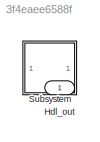
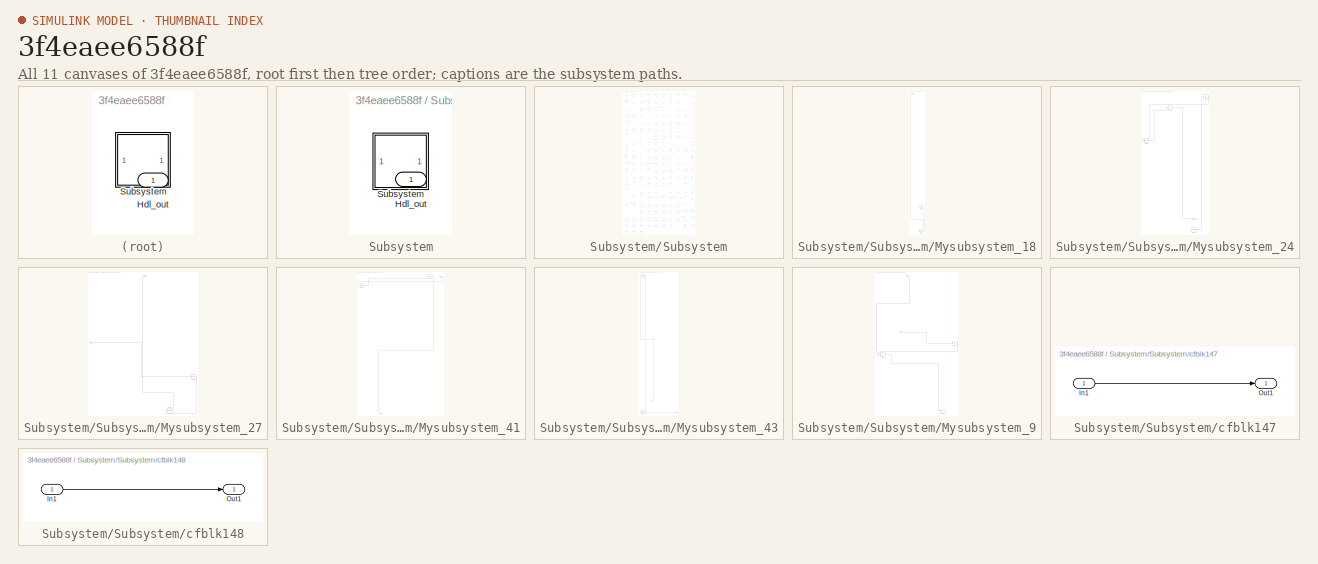
[diagram: thumbnail index - all 11 canvases of the model, root first then tree order]
MODEL slx_3f4eaee6588f
KIND model
CONFIG AbsTol = auto
CONFIG EnableMultiTasking = off
CONFIG FixedStep = auto
CONFIG MaxStep = auto
CONFIG MinStep = auto
CONFIG RelTol = 1e-3
CONFIG SampleTimeConstraint = Unconstrained
CONFIG SolverName = VariableStepAuto
CONFIG StartTime = 0.0
CONFIG StopTime = 10.0
BLOCK [Outport] Hdl_out
  OutDataTypeStr = uint8
BLOCK [SubSystem] Subsystem
BLOCK [Outport] Subsystem/Hdl_out
  OutDataTypeStr = uint8
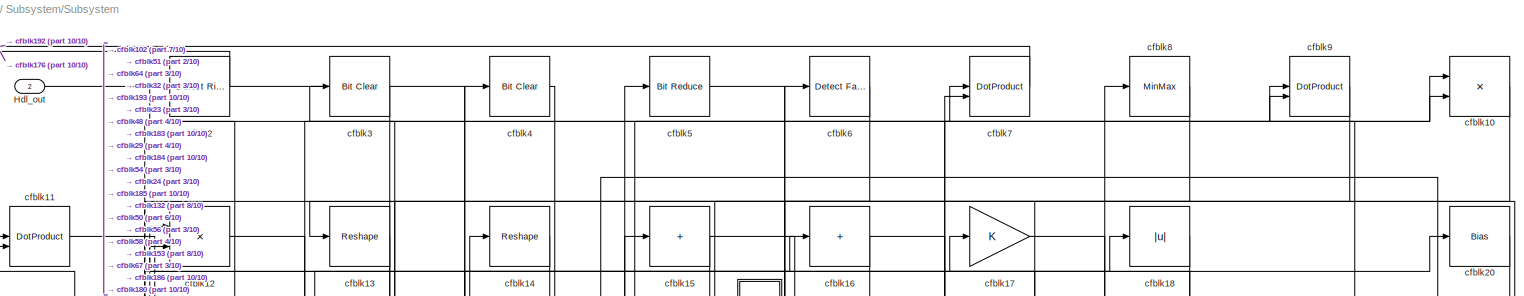
[diagram: Subsystem/Subsystem - part 1/10, full width, top band]
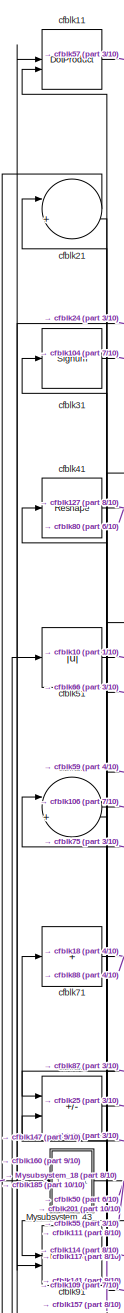
[diagram: Subsystem/Subsystem - part 2/10, top left region]
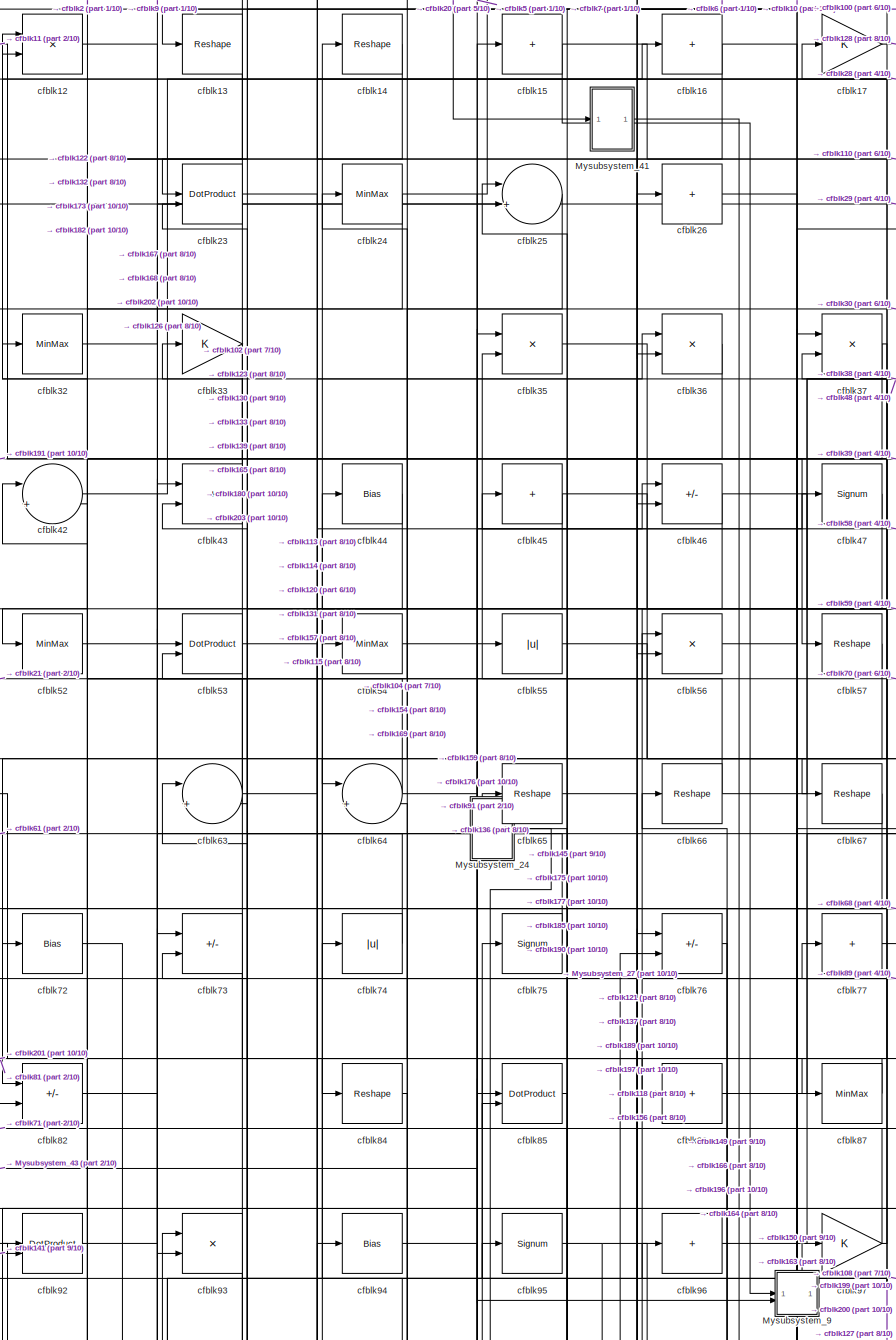
[diagram: Subsystem/Subsystem - part 3/10, top center region]
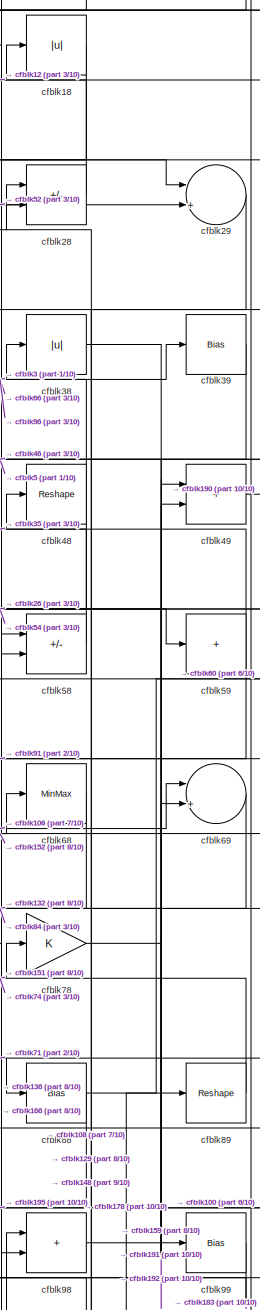
[diagram: Subsystem/Subsystem - part 4/10, top right region]
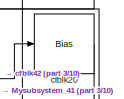
[diagram: Subsystem/Subsystem - part 5/10, top right region]
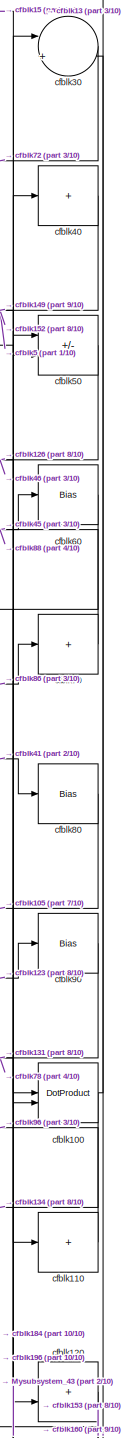
[diagram: Subsystem/Subsystem - part 6/10, middle right region]
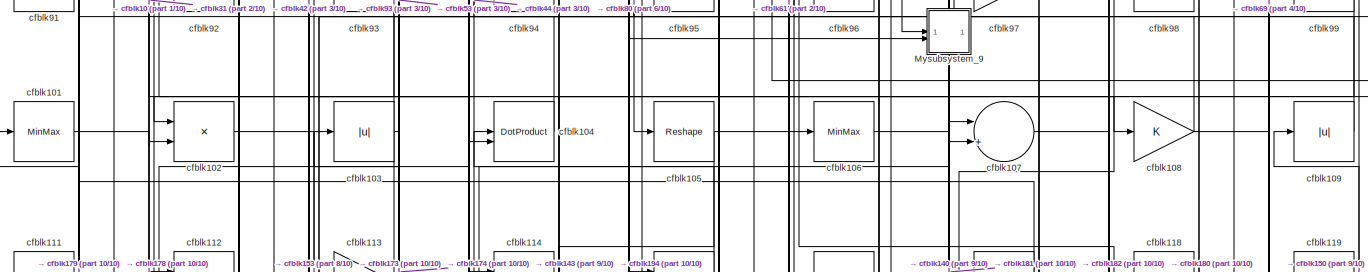
[diagram: Subsystem/Subsystem - part 7/10, full width, middle band]
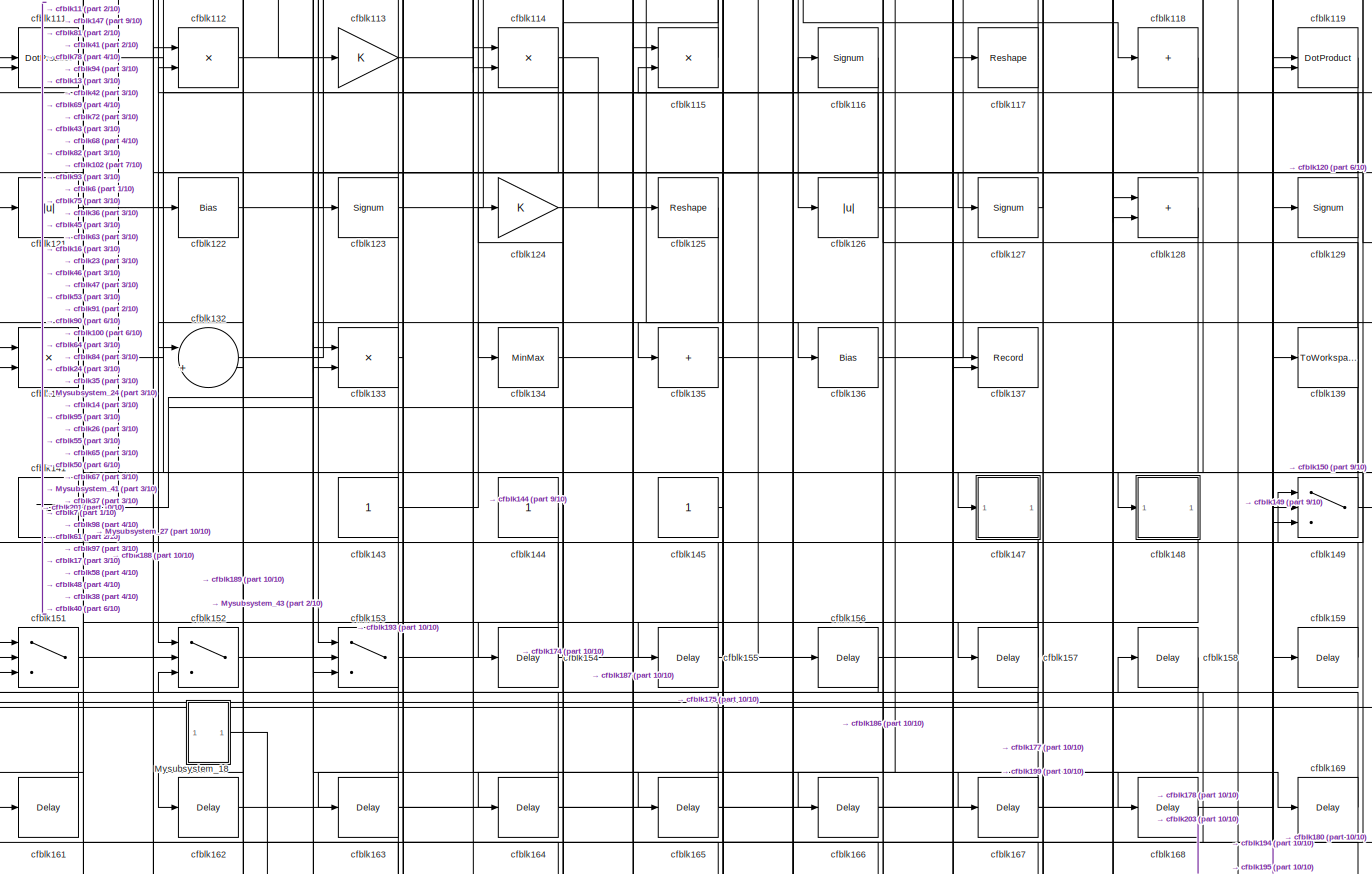
[diagram: Subsystem/Subsystem - part 8/10, full width, bottom band]
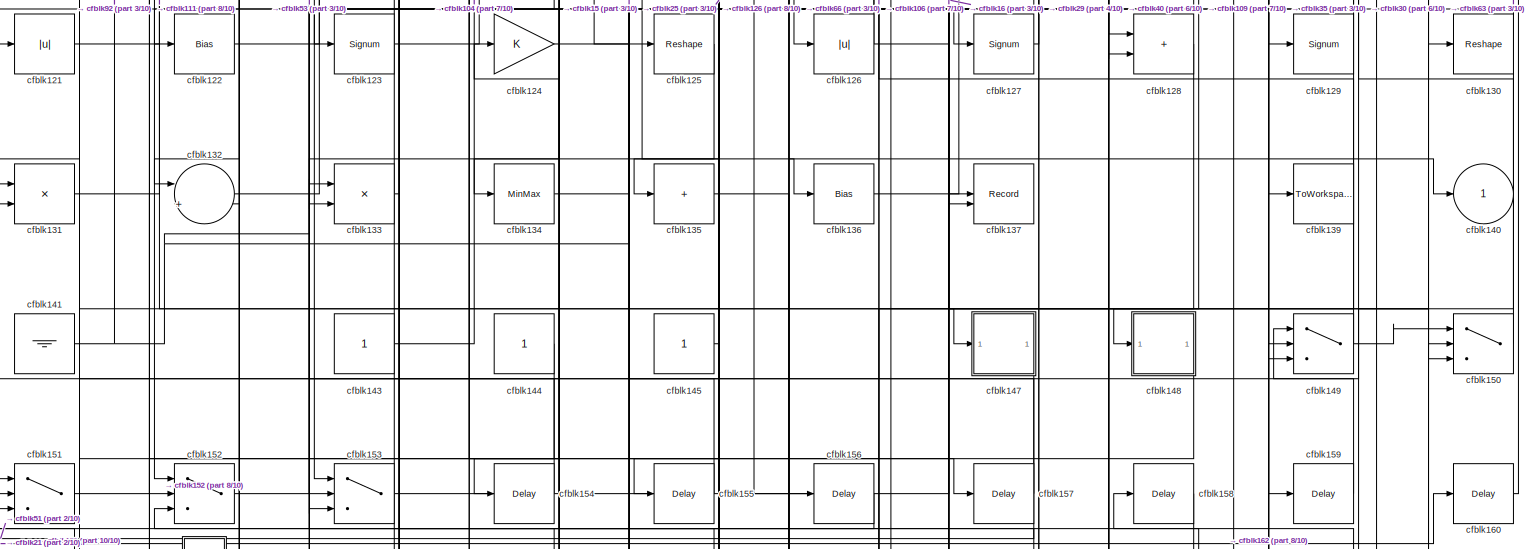
[diagram: Subsystem/Subsystem - part 9/10, full width, bottom band]
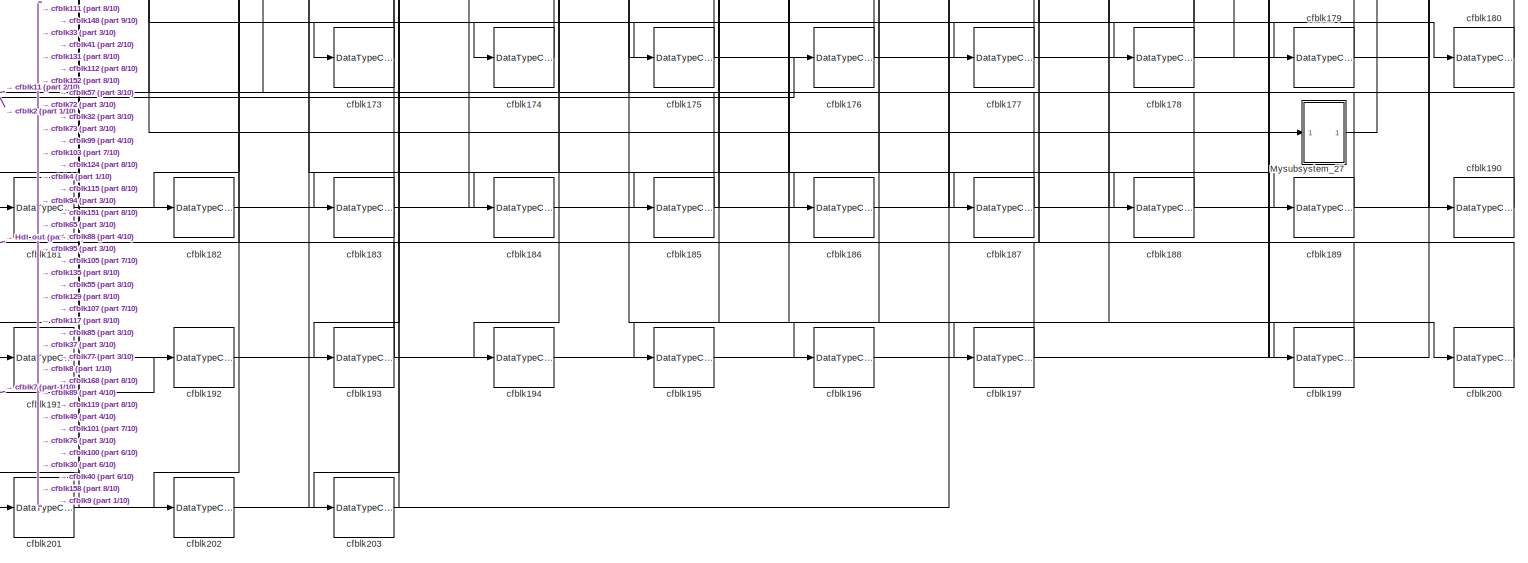
[diagram: Subsystem/Subsystem - part 10/10, full width, bottom band]
BLOCK [SubSystem] Subsystem/Subsystem
BLOCK [Outport] Subsystem/Subsystem/Hdl_out
  OutDataTypeStr = uint8
  Port = 2
BLOCK [SubSystem] Subsystem/Subsystem/Mysubsystem_18
  RTWFcnName = Mysubsystem_18
  RTWFcnNameOpts = User specified
  RTWFileNameOpts = Use function name
  RTWSystemCode = Reusable function
  TreatAsAtomicUnit = on
BLOCK [Outport] Subsystem/Subsystem/Mysubsystem_18/Out1
BLOCK [Reference] Subsystem/Subsystem/Mysubsystem_18/cfblk142  REF=hdlsllib/Sources/Counter
Limited
  SourceBlock = hdlsllib/Sources/Counter\nLimited
  SourceType = Counter Limited
BLOCK [DataTypeConversion] Subsystem/Subsystem/Mysubsystem_18/cfblk172
  OutDataTypeStr = uint8
  RndMeth = Floor
  SaturateOnIntegerOverflow = off
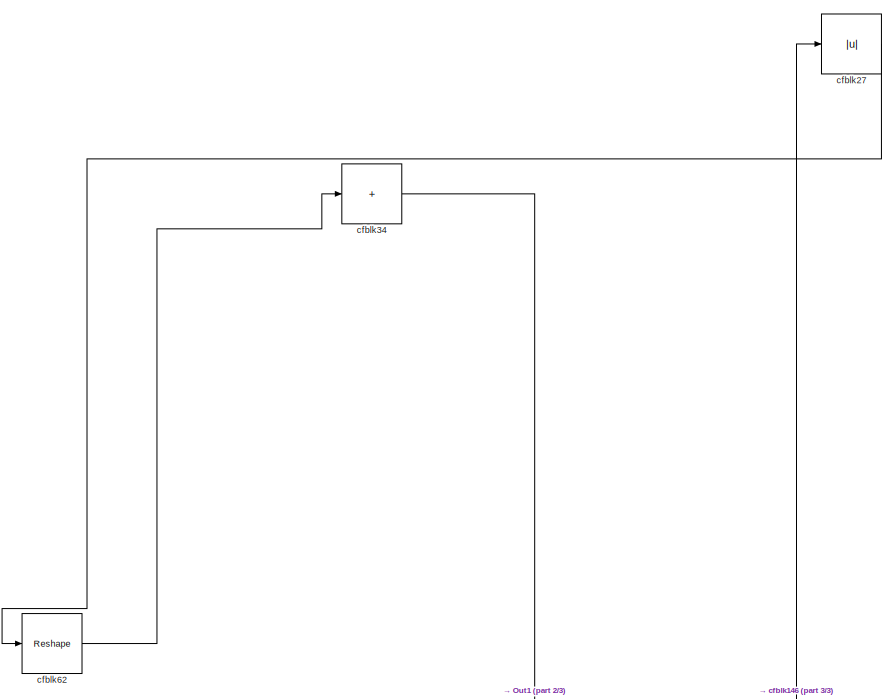
[diagram: Subsystem/Subsystem/Mysubsystem_24 - part 1/3, full width, top band]
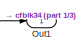
[diagram: Subsystem/Subsystem/Mysubsystem_24 - part 2/3, bottom right region]
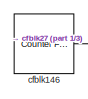
[diagram: Subsystem/Subsystem/Mysubsystem_24 - part 3/3, bottom right region]
BLOCK [SubSystem] Subsystem/Subsystem/Mysubsystem_24
  RTWFcnName = Mysubsystem_24
  RTWFcnNameOpts = User specified
  RTWFileNameOpts = Use function name
  RTWSystemCode = Reusable function
  TreatAsAtomicUnit = on
BLOCK [Outport] Subsystem/Subsystem/Mysubsystem_24/Out1
BLOCK [Reference] Subsystem/Subsystem/Mysubsystem_24/cfblk146  REF=hdlsllib/Sources/Counter
Free-Running
  SourceBlock = hdlsllib/Sources/Counter\nFree-Running
  SourceType = Counter Free-Running
BLOCK [Abs] Subsystem/Subsystem/Mysubsystem_24/cfblk27
  SaturateOnIntegerOverflow = off
BLOCK [Sum] Subsystem/Subsystem/Mysubsystem_24/cfblk34
  IconShape = rectangular
  Inputs = +
BLOCK [Reshape] Subsystem/Subsystem/Mysubsystem_24/cfblk62
BLOCK [SubSystem] Subsystem/Subsystem/Mysubsystem_27
  RTWFcnName = Mysubsystem_27
  RTWFcnNameOpts = User specified
  RTWFileNameOpts = Use function name
  RTWSystemCode = Reusable function
  TreatAsAtomicUnit = on
BLOCK [Inport] Subsystem/Subsystem/Mysubsystem_27/In1
BLOCK [Outport] Subsystem/Subsystem/Mysubsystem_27/Out1
BLOCK [Delay] Subsystem/Subsystem/Mysubsystem_27/cfblk170
  InputPortMap = u0
  SampleTime = 1
BLOCK [DataTypeConversion] Subsystem/Subsystem/Mysubsystem_27/cfblk198
  OutDataTypeStr = uint8
  RndMeth = Floor
  SaturateOnIntegerOverflow = off
BLOCK [SubSystem] Subsystem/Subsystem/Mysubsystem_41
  RTWFcnName = Mysubsystem_41
  RTWFcnNameOpts = User specified
  RTWFileNameOpts = Use function name
  RTWSystemCode = Reusable function
  TreatAsAtomicUnit = on
BLOCK [Inport] Subsystem/Subsystem/Mysubsystem_41/In1
BLOCK [Outport] Subsystem/Subsystem/Mysubsystem_41/Out1
BLOCK [Signum] Subsystem/Subsystem/Mysubsystem_41/cfblk19
BLOCK [Signum] Subsystem/Subsystem/Mysubsystem_41/cfblk22
BLOCK [SubSystem] Subsystem/Subsystem/Mysubsystem_43
  RTWFcnName = Mysubsystem_43
  RTWFcnNameOpts = User specified
  RTWFileNameOpts = Use function name
  RTWSystemCode = Reusable function
  TreatAsAtomicUnit = on
BLOCK [Outport] Subsystem/Subsystem/Mysubsystem_43/Out1
BLOCK [Inport] Subsystem/Subsystem/Mysubsystem_43/U
BLOCK [Reference] Subsystem/Subsystem/Mysubsystem_43/cfblk1  REF=hdlsllib/Logic and Bit
Operations/Detect Fall
Negative
  SourceBlock = hdlsllib/Logic and Bit\nOperations/Detect Fall\nNegative
  SourceType = Detect Fall Negative
BLOCK [DataTypeConversion] Subsystem/Subsystem/Mysubsystem_43/cfblk171
  RndMeth = Floor
  SaturateOnIntegerOverflow = off
BLOCK [SubSystem] Subsystem/Subsystem/Mysubsystem_9
  RTWFcnName = Mysubsystem_9
  RTWFcnNameOpts = User specified
  RTWFileNameOpts = Use function name
  RTWSystemCode = Reusable function
  TreatAsAtomicUnit = on
BLOCK [Inport] Subsystem/Subsystem/Mysubsystem_9/In1
BLOCK [Inport] Subsystem/Subsystem/Mysubsystem_9/In2
  Port = 2
BLOCK [Terminator] Subsystem/Subsystem/Mysubsystem_9/cfblk138
BLOCK [Abs] Subsystem/Subsystem/Mysubsystem_9/cfblk79
  SaturateOnIntegerOverflow = off
BLOCK [Sum] Subsystem/Subsystem/Mysubsystem_9/cfblk83
  IconShape = rectangular
  Inputs = +-
BLOCK [Product] Subsystem/Subsystem/cfblk10
  Inputs = */
  OutDataTypeStr = uint8
  RndMeth = Zero
  SaturateOnIntegerOverflow = on
BLOCK [DotProduct] Subsystem/Subsystem/cfblk100
  OutDataTypeStr = uint8
BLOCK [MinMax] Subsystem/Subsystem/cfblk101
  OutDataTypeStr = uint8
BLOCK [Product] Subsystem/Subsystem/cfblk102
  Inputs = */
  OutDataTypeStr = uint8
  RndMeth = Zero
  SaturateOnIntegerOverflow = on
BLOCK [Abs] Subsystem/Subsystem/cfblk103
  OutDataTypeStr = uint8
  SaturateOnIntegerOverflow = off
BLOCK [DotProduct] Subsystem/Subsystem/cfblk104
  OutDataTypeStr = uint8
BLOCK [Reshape] Subsystem/Subsystem/cfblk105
BLOCK [MinMax] Subsystem/Subsystem/cfblk106
  OutDataTypeStr = uint8
BLOCK [Sum] Subsystem/Subsystem/cfblk107
  Inputs = |++
  OutDataTypeStr = uint8
BLOCK [Gain] Subsystem/Subsystem/cfblk108
  OutDataTypeStr = uint8
BLOCK [Abs] Subsystem/Subsystem/cfblk109
  OutDataTypeStr = uint8
  SaturateOnIntegerOverflow = off
BLOCK [DotProduct] Subsystem/Subsystem/cfblk11
  OutDataTypeStr = uint8
BLOCK [Sum] Subsystem/Subsystem/cfblk110
  IconShape = rectangular
  Inputs = +
  OutDataTypeStr = uint8
BLOCK [DotProduct] Subsystem/Subsystem/cfblk111
  OutDataTypeStr = uint8
BLOCK [Product] Subsystem/Subsystem/cfblk112
  Inputs = */
  OutDataTypeStr = uint8
  RndMeth = Zero
  SaturateOnIntegerOverflow = on
BLOCK [Gain] Subsystem/Subsystem/cfblk113
  OutDataTypeStr = uint8
BLOCK [Product] Subsystem/Subsystem/cfblk114
  Inputs = */
  OutDataTypeStr = uint8
  RndMeth = Zero
  SaturateOnIntegerOverflow = on
BLOCK [Product] Subsystem/Subsystem/cfblk115
  Inputs = */
  OutDataTypeStr = uint8
  RndMeth = Zero
  SaturateOnIntegerOverflow = on
BLOCK [Signum] Subsystem/Subsystem/cfblk116
BLOCK [Reshape] Subsystem/Subsystem/cfblk117
BLOCK [Sum] Subsystem/Subsystem/cfblk118
  IconShape = rectangular
  Inputs = +
  OutDataTypeStr = uint8
BLOCK [DotProduct] Subsystem/Subsystem/cfblk119
  OutDataTypeStr = uint8
BLOCK [Product] Subsystem/Subsystem/cfblk12
  Inputs = */
  OutDataTypeStr = uint8
  RndMeth = Zero
  SaturateOnIntegerOverflow = on
BLOCK [Sum] Subsystem/Subsystem/cfblk120
  IconShape = rectangular
  OutDataTypeStr = uint8
BLOCK [Abs] Subsystem/Subsystem/cfblk121
  OutDataTypeStr = uint8
  SaturateOnIntegerOverflow = off
BLOCK [Bias] Subsystem/Subsystem/cfblk122
  Bias = 0.0
  SaturateOnIntegerOverflow = off
BLOCK [Signum] Subsystem/Subsystem/cfblk123
BLOCK [Gain] Subsystem/Subsystem/cfblk124
  OutDataTypeStr = uint8
BLOCK [Reshape] Subsystem/Subsystem/cfblk125
BLOCK [Abs] Subsystem/Subsystem/cfblk126
  OutDataTypeStr = uint8
  SaturateOnIntegerOverflow = off
BLOCK [Signum] Subsystem/Subsystem/cfblk127
BLOCK [Sum] Subsystem/Subsystem/cfblk128
  IconShape = rectangular
  OutDataTypeStr = uint8
BLOCK [Signum] Subsystem/Subsystem/cfblk129
BLOCK [Reshape] Subsystem/Subsystem/cfblk13
BLOCK [Reshape] Subsystem/Subsystem/cfblk130
BLOCK [Product] Subsystem/Subsystem/cfblk131
  Inputs = */
  OutDataTypeStr = uint8
  RndMeth = Zero
  SaturateOnIntegerOverflow = on
BLOCK [Sum] Subsystem/Subsystem/cfblk132
  Inputs = |++
  OutDataTypeStr = uint8
BLOCK [Product] Subsystem/Subsystem/cfblk133
  Inputs = */
  OutDataTypeStr = uint8
  RndMeth = Zero
  SaturateOnIntegerOverflow = on
BLOCK [MinMax] Subsystem/Subsystem/cfblk134
  OutDataTypeStr = uint8
BLOCK [Sum] Subsystem/Subsystem/cfblk135
  IconShape = rectangular
  Inputs = +
  OutDataTypeStr = uint8
BLOCK [Bias] Subsystem/Subsystem/cfblk136
  Bias = 0.0
  SaturateOnIntegerOverflow = off
BLOCK [Record] Subsystem/Subsystem/cfblk137
  CompatibilityTag = XY
  FileSettingsInternal = {"entries":[{"content":{"excelSettings":{"content":{},"type":"Streamout.ExcelSettings"}},"type":"Streamout.FileSettingStorage","uuid":""}],"packageUris":["http:\/\/schema.mathworks.com\/mf0\/streamout_blocks\/R2020a"],"version":"1.0"}
  Layout = [1 1]
  SignalsInternal = {"entries":[{"content":{"signals":[{"content":{"blockPath":[],"dimensions":[1],"domain":"","lineColor":"#a2142f","plots":[1],"port":1,"signalID":58745,"signalName":"cfblk55"},"type":"RecordBlkView.Signal","uuid":""},{"content":{"blockPath":[],"dimensions":[1],"domain":"","lineColor":"#139fff","plots":[1],"port":2,"signalID":58748,"signalName":"cfblk65"},"type":"RecordBlkView.Signal","uuid":""}]},"...<+142ch>
  VisualizationBindings = {"xyplotplugin":{"info":[{"series":[{"bindingParametersList":[{"parameter":"X-Axis","signalID":58745,"signalName":"cfblk55"},{"parameter":"Y-Axis","signalID":58748,"signalName":"cfblk65"}],"seriesID":15108}],"subplotID":1}]}}
  st = -1
BLOCK [ToWorkspace] Subsystem/Subsystem/cfblk139
  MaxDataPoints = inf
  SampleTime = -1
  SaveFormat = Timeseries
  VariableName = simout
BLOCK [Reshape] Subsystem/Subsystem/cfblk14
BLOCK [Outport] Subsystem/Subsystem/cfblk140
  OutDataTypeStr = uint8
  VectorParamsAs1DForOutWhenUnconnected = off
BLOCK [Ground] Subsystem/Subsystem/cfblk141
BLOCK [Constant] Subsystem/Subsystem/cfblk143
  OutDataTypeStr = uint8
  SampleTime = -1
BLOCK [Constant] Subsystem/Subsystem/cfblk144
  OutDataTypeStr = uint8
  SampleTime = -1
BLOCK [Constant] Subsystem/Subsystem/cfblk145
  OutDataTypeStr = uint8
  SampleTime = -1
BLOCK [SubSystem] Subsystem/Subsystem/cfblk147
  LibrarySourceBlock = hdlsllib/Ports &\nSubsystems/Subsystem
BLOCK [Inport] Subsystem/Subsystem/cfblk147/In1
BLOCK [Outport] Subsystem/Subsystem/cfblk147/Out1
BLOCK [SubSystem] Subsystem/Subsystem/cfblk148
  LibrarySourceBlock = hdlsllib/Ports &\nSubsystems/Subsystem
BLOCK [Inport] Subsystem/Subsystem/cfblk148/In1
BLOCK [Outport] Subsystem/Subsystem/cfblk148/Out1
BLOCK [Switch] Subsystem/Subsystem/cfblk149
  InputSameDT = off
  OutDataTypeStr = uint8
  SaturateOnIntegerOverflow = off
BLOCK [Sum] Subsystem/Subsystem/cfblk15
  IconShape = rectangular
  Inputs = +
  OutDataTypeStr = uint8
BLOCK [Switch] Subsystem/Subsystem/cfblk150
  InputSameDT = off
  OutDataTypeStr = uint8
  SaturateOnIntegerOverflow = off
BLOCK [Switch] Subsystem/Subsystem/cfblk151
  InputSameDT = off
  OutDataTypeStr = uint8
  SaturateOnIntegerOverflow = off
BLOCK [Switch] Subsystem/Subsystem/cfblk152
  InputSameDT = off
  OutDataTypeStr = uint8
  SaturateOnIntegerOverflow = off
BLOCK [Switch] Subsystem/Subsystem/cfblk153
  InputSameDT = off
  OutDataTypeStr = uint8
  SaturateOnIntegerOverflow = off
BLOCK [Delay] Subsystem/Subsystem/cfblk154
  InputPortMap = u0
  SampleTime = 1
BLOCK [Delay] Subsystem/Subsystem/cfblk155
  InputPortMap = u0
  SampleTime = 1
BLOCK [Delay] Subsystem/Subsystem/cfblk156
  InputPortMap = u0
  SampleTime = 1
BLOCK [Delay] Subsystem/Subsystem/cfblk157
  InputPortMap = u0
  SampleTime = 1
BLOCK [Delay] Subsystem/Subsystem/cfblk158
  InputPortMap = u0
  SampleTime = 1
BLOCK [Delay] Subsystem/Subsystem/cfblk159
  InputPortMap = u0
  SampleTime = 1
BLOCK [Sum] Subsystem/Subsystem/cfblk16
  IconShape = rectangular
  Inputs = +
  OutDataTypeStr = uint8
BLOCK [Delay] Subsystem/Subsystem/cfblk160
  InputPortMap = u0
  SampleTime = 1
BLOCK [Delay] Subsystem/Subsystem/cfblk161
  InputPortMap = u0
  SampleTime = 1
BLOCK [Delay] Subsystem/Subsystem/cfblk162
  InputPortMap = u0
  SampleTime = 1
BLOCK [Delay] Subsystem/Subsystem/cfblk163
  InputPortMap = u0
  SampleTime = 1
BLOCK [Delay] Subsystem/Subsystem/cfblk164
  InputPortMap = u0
  SampleTime = 1
BLOCK [Delay] Subsystem/Subsystem/cfblk165
  InputPortMap = u0
  SampleTime = 1
BLOCK [Delay] Subsystem/Subsystem/cfblk166
  InputPortMap = u0
  SampleTime = 1
BLOCK [Delay] Subsystem/Subsystem/cfblk167
  InputPortMap = u0
  SampleTime = 1
BLOCK [Delay] Subsystem/Subsystem/cfblk168
  InputPortMap = u0
  SampleTime = 1
BLOCK [Delay] Subsystem/Subsystem/cfblk169
  InputPortMap = u0
  SampleTime = 1
BLOCK [Gain] Subsystem/Subsystem/cfblk17
  OutDataTypeStr = uint8
BLOCK [DataTypeConversion] Subsystem/Subsystem/cfblk173
  OutDataTypeStr = uint8
  RndMeth = Floor
  SaturateOnIntegerOverflow = off
BLOCK [DataTypeConversion] Subsystem/Subsystem/cfblk174
  OutDataTypeStr = uint8
  RndMeth = Floor
  SaturateOnIntegerOverflow = off
BLOCK [DataTypeConversion] Subsystem/Subsystem/cfblk175
  OutDataTypeStr = uint8
  RndMeth = Floor
  SaturateOnIntegerOverflow = off
BLOCK [DataTypeConversion] Subsystem/Subsystem/cfblk176
  OutDataTypeStr = uint8
  RndMeth = Floor
  SaturateOnIntegerOverflow = off
BLOCK [DataTypeConversion] Subsystem/Subsystem/cfblk177
  OutDataTypeStr = uint8
  RndMeth = Floor
  SaturateOnIntegerOverflow = off
BLOCK [DataTypeConversion] Subsystem/Subsystem/cfblk178
  OutDataTypeStr = uint8
  RndMeth = Floor
  SaturateOnIntegerOverflow = off
BLOCK [DataTypeConversion] Subsystem/Subsystem/cfblk179
  OutDataTypeStr = uint8
  RndMeth = Floor
  SaturateOnIntegerOverflow = off
BLOCK [Abs] Subsystem/Subsystem/cfblk18
  OutDataTypeStr = uint8
  SaturateOnIntegerOverflow = off
BLOCK [DataTypeConversion] Subsystem/Subsystem/cfblk180
  OutDataTypeStr = uint8
  RndMeth = Floor
  SaturateOnIntegerOverflow = off
BLOCK [DataTypeConversion] Subsystem/Subsystem/cfblk181
  OutDataTypeStr = uint8
  RndMeth = Floor
  SaturateOnIntegerOverflow = off
BLOCK [DataTypeConversion] Subsystem/Subsystem/cfblk182
  OutDataTypeStr = uint8
  RndMeth = Floor
  SaturateOnIntegerOverflow = off
BLOCK [DataTypeConversion] Subsystem/Subsystem/cfblk183
  OutDataTypeStr = uint8
  RndMeth = Floor
  SaturateOnIntegerOverflow = off
BLOCK [DataTypeConversion] Subsystem/Subsystem/cfblk184
  OutDataTypeStr = uint8
  RndMeth = Floor
  SaturateOnIntegerOverflow = off
BLOCK [DataTypeConversion] Subsystem/Subsystem/cfblk185
  OutDataTypeStr = uint8
  RndMeth = Floor
  SaturateOnIntegerOverflow = off
BLOCK [DataTypeConversion] Subsystem/Subsystem/cfblk186
  OutDataTypeStr = uint8
  RndMeth = Floor
  SaturateOnIntegerOverflow = off
BLOCK [DataTypeConversion] Subsystem/Subsystem/cfblk187
  OutDataTypeStr = uint8
  RndMeth = Floor
  SaturateOnIntegerOverflow = off
BLOCK [DataTypeConversion] Subsystem/Subsystem/cfblk188
  OutDataTypeStr = uint8
  RndMeth = Floor
  SaturateOnIntegerOverflow = off
BLOCK [DataTypeConversion] Subsystem/Subsystem/cfblk189
  OutDataTypeStr = uint8
  RndMeth = Floor
  SaturateOnIntegerOverflow = off
BLOCK [DataTypeConversion] Subsystem/Subsystem/cfblk190
  OutDataTypeStr = uint8
  RndMeth = Floor
  SaturateOnIntegerOverflow = off
BLOCK [DataTypeConversion] Subsystem/Subsystem/cfblk191
  OutDataTypeStr = uint8
  RndMeth = Floor
  SaturateOnIntegerOverflow = off
BLOCK [DataTypeConversion] Subsystem/Subsystem/cfblk192
  OutDataTypeStr = uint8
  RndMeth = Floor
  SaturateOnIntegerOverflow = off
BLOCK [DataTypeConversion] Subsystem/Subsystem/cfblk193
  OutDataTypeStr = uint8
  RndMeth = Floor
  SaturateOnIntegerOverflow = off
BLOCK [DataTypeConversion] Subsystem/Subsystem/cfblk194
  OutDataTypeStr = uint8
  RndMeth = Floor
  SaturateOnIntegerOverflow = off
BLOCK [DataTypeConversion] Subsystem/Subsystem/cfblk195
  OutDataTypeStr = uint8
  RndMeth = Floor
  SaturateOnIntegerOverflow = off
BLOCK [DataTypeConversion] Subsystem/Subsystem/cfblk196
  OutDataTypeStr = uint8
  RndMeth = Floor
  SaturateOnIntegerOverflow = off
BLOCK [DataTypeConversion] Subsystem/Subsystem/cfblk197
  OutDataTypeStr = uint8
  RndMeth = Floor
  SaturateOnIntegerOverflow = off
BLOCK [DataTypeConversion] Subsystem/Subsystem/cfblk199
  OutDataTypeStr = uint8
  RndMeth = Floor
  SaturateOnIntegerOverflow = off
BLOCK [Reference] Subsystem/Subsystem/cfblk2  REF=hdlsllib/Logic and Bit
Operations/Detect Rise
Positive
  SourceBlock = hdlsllib/Logic and Bit\nOperations/Detect Rise\nPositive
  SourceType = Detect Rise Positive
BLOCK [Bias] Subsystem/Subsystem/cfblk20
  Bias = 0.0
  SaturateOnIntegerOverflow = off
BLOCK [DataTypeConversion] Subsystem/Subsystem/cfblk200
  OutDataTypeStr = uint8
  RndMeth = Floor
  SaturateOnIntegerOverflow = off
BLOCK [DataTypeConversion] Subsystem/Subsystem/cfblk201
  OutDataTypeStr = uint8
  RndMeth = Floor
  SaturateOnIntegerOverflow = off
BLOCK [DataTypeConversion] Subsystem/Subsystem/cfblk202
  OutDataTypeStr = uint8
  RndMeth = Floor
  SaturateOnIntegerOverflow = off
BLOCK [DataTypeConversion] Subsystem/Subsystem/cfblk203
  OutDataTypeStr = uint8
  RndMeth = Floor
  SaturateOnIntegerOverflow = off
BLOCK [Sum] Subsystem/Subsystem/cfblk21
  Inputs = |++
  OutDataTypeStr = uint8
BLOCK [DotProduct] Subsystem/Subsystem/cfblk23
  OutDataTypeStr = uint8
BLOCK [MinMax] Subsystem/Subsystem/cfblk24
  OutDataTypeStr = uint8
BLOCK [Sum] Subsystem/Subsystem/cfblk25
  Inputs = |++
  OutDataTypeStr = uint8
BLOCK [Sum] Subsystem/Subsystem/cfblk26
  IconShape = rectangular
  Inputs = +
  OutDataTypeStr = uint8
BLOCK [Sum] Subsystem/Subsystem/cfblk28
  IconShape = rectangular
  Inputs = +-
  OutDataTypeStr = uint8
BLOCK [Sum] Subsystem/Subsystem/cfblk29
  Inputs = |++
  OutDataTypeStr = uint8
BLOCK [Reference] Subsystem/Subsystem/cfblk3  REF=simulink/Logic and Bit
Operations/Bit Clear
  LibrarySourceBlock = hdlsllib/Logic and Bit\nOperations/Bit Clear
  SourceBlock = simulink/Logic and Bit\nOperations/Bit Clear
  SourceType = Bit Clear
BLOCK [Sum] Subsystem/Subsystem/cfblk30
  Inputs = |++
  OutDataTypeStr = uint8
BLOCK [Signum] Subsystem/Subsystem/cfblk31
BLOCK [MinMax] Subsystem/Subsystem/cfblk32
  OutDataTypeStr = uint8
BLOCK [Gain] Subsystem/Subsystem/cfblk33
  OutDataTypeStr = uint8
BLOCK [Product] Subsystem/Subsystem/cfblk35
  Inputs = */
  OutDataTypeStr = uint8
  RndMeth = Zero
  SaturateOnIntegerOverflow = on
BLOCK [Product] Subsystem/Subsystem/cfblk36
  Inputs = */
  OutDataTypeStr = uint8
  RndMeth = Zero
  SaturateOnIntegerOverflow = on
BLOCK [Product] Subsystem/Subsystem/cfblk37
  Inputs = */
  OutDataTypeStr = uint8
  RndMeth = Zero
  SaturateOnIntegerOverflow = on
BLOCK [Abs] Subsystem/Subsystem/cfblk38
  OutDataTypeStr = uint8
  SaturateOnIntegerOverflow = off
BLOCK [Bias] Subsystem/Subsystem/cfblk39
  Bias = 0.0
  SaturateOnIntegerOverflow = off
BLOCK [Reference] Subsystem/Subsystem/cfblk4  REF=simulink/Logic and Bit
Operations/Bit Clear
  LibrarySourceBlock = hdlsllib/Logic and Bit\nOperations/Bit Clear
  SourceBlock = simulink/Logic and Bit\nOperations/Bit Clear
  SourceType = Bit Clear
BLOCK [Sum] Subsystem/Subsystem/cfblk40
  IconShape = rectangular
  Inputs = +
  OutDataTypeStr = uint8
BLOCK [Reshape] Subsystem/Subsystem/cfblk41
BLOCK [Sum] Subsystem/Subsystem/cfblk42
  Inputs = |++
  OutDataTypeStr = uint8
BLOCK [Sum] Subsystem/Subsystem/cfblk43
  IconShape = rectangular
  OutDataTypeStr = uint8
BLOCK [Bias] Subsystem/Subsystem/cfblk44
  Bias = 0.0
  SaturateOnIntegerOverflow = off
BLOCK [Sum] Subsystem/Subsystem/cfblk45
  IconShape = rectangular
  Inputs = +
  OutDataTypeStr = uint8
BLOCK [Sum] Subsystem/Subsystem/cfblk46
  IconShape = rectangular
  Inputs = +-
  OutDataTypeStr = uint8
BLOCK [Signum] Subsystem/Subsystem/cfblk47
BLOCK [Reshape] Subsystem/Subsystem/cfblk48
BLOCK [Sum] Subsystem/Subsystem/cfblk49
  IconShape = rectangular
  OutDataTypeStr = uint8
BLOCK [Reference] Subsystem/Subsystem/cfblk5  REF=hdlsllib/Logic and Bit
Operations/Bit Reduce
  SourceBlock = hdlsllib/Logic and Bit\nOperations/Bit Reduce
  SourceType = Bit Reduce
BLOCK [Sum] Subsystem/Subsystem/cfblk50
  IconShape = rectangular
  Inputs = +-
  OutDataTypeStr = uint8
BLOCK [Abs] Subsystem/Subsystem/cfblk51
  OutDataTypeStr = uint8
  SaturateOnIntegerOverflow = off
BLOCK [MinMax] Subsystem/Subsystem/cfblk52
  OutDataTypeStr = uint8
BLOCK [DotProduct] Subsystem/Subsystem/cfblk53
  OutDataTypeStr = uint8
BLOCK [MinMax] Subsystem/Subsystem/cfblk54
  OutDataTypeStr = uint8
BLOCK [Abs] Subsystem/Subsystem/cfblk55
  OutDataTypeStr = uint8
  SaturateOnIntegerOverflow = off
BLOCK [Product] Subsystem/Subsystem/cfblk56
  Inputs = */
  OutDataTypeStr = uint8
  RndMeth = Zero
  SaturateOnIntegerOverflow = on
BLOCK [Reshape] Subsystem/Subsystem/cfblk57
BLOCK [Sum] Subsystem/Subsystem/cfblk58
  IconShape = rectangular
  Inputs = +-
  OutDataTypeStr = uint8
BLOCK [Sum] Subsystem/Subsystem/cfblk59
  IconShape = rectangular
  Inputs = +
  OutDataTypeStr = uint8
BLOCK [Reference] Subsystem/Subsystem/cfblk6  REF=hdlsllib/Logic and Bit
Operations/Detect Fall
Negative
  SourceBlock = hdlsllib/Logic and Bit\nOperations/Detect Fall\nNegative
  SourceType = Detect Fall Negative
BLOCK [Bias] Subsystem/Subsystem/cfblk60
  Bias = 0.0
  SaturateOnIntegerOverflow = off
BLOCK [Sum] Subsystem/Subsystem/cfblk61
  Inputs = |++
  OutDataTypeStr = uint8
BLOCK [Sum] Subsystem/Subsystem/cfblk63
  Inputs = |++
  OutDataTypeStr = uint8
BLOCK [Sum] Subsystem/Subsystem/cfblk64
  Inputs = |++
  OutDataTypeStr = uint8
BLOCK [Reshape] Subsystem/Subsystem/cfblk65
BLOCK [Reshape] Subsystem/Subsystem/cfblk66
BLOCK [Reshape] Subsystem/Subsystem/cfblk67
BLOCK [MinMax] Subsystem/Subsystem/cfblk68
  OutDataTypeStr = uint8
BLOCK [Sum] Subsystem/Subsystem/cfblk69
  Inputs = |++
  OutDataTypeStr = uint8
BLOCK [DotProduct] Subsystem/Subsystem/cfblk7
  OutDataTypeStr = uint8
BLOCK [Sum] Subsystem/Subsystem/cfblk70
  IconShape = rectangular
  Inputs = +
  OutDataTypeStr = uint8
BLOCK [Sum] Subsystem/Subsystem/cfblk71
  IconShape = rectangular
  Inputs = +
  OutDataTypeStr = uint8
BLOCK [Bias] Subsystem/Subsystem/cfblk72
  Bias = 0.0
  SaturateOnIntegerOverflow = off
BLOCK [Sum] Subsystem/Subsystem/cfblk73
  IconShape = rectangular
  Inputs = +-
  OutDataTypeStr = uint8
BLOCK [Abs] Subsystem/Subsystem/cfblk74
  OutDataTypeStr = uint8
  SaturateOnIntegerOverflow = off
BLOCK [Signum] Subsystem/Subsystem/cfblk75
BLOCK [Sum] Subsystem/Subsystem/cfblk76
  IconShape = rectangular
  Inputs = +-
  OutDataTypeStr = uint8
BLOCK [Sum] Subsystem/Subsystem/cfblk77
  IconShape = rectangular
  Inputs = +
  OutDataTypeStr = uint8
BLOCK [Gain] Subsystem/Subsystem/cfblk78
  OutDataTypeStr = uint8
BLOCK [MinMax] Subsystem/Subsystem/cfblk8
  OutDataTypeStr = uint8
BLOCK [Bias] Subsystem/Subsystem/cfblk80
  Bias = 0.0
  SaturateOnIntegerOverflow = off
BLOCK [Sum] Subsystem/Subsystem/cfblk81
  IconShape = rectangular
  Inputs = +-
  OutDataTypeStr = uint8
BLOCK [Sum] Subsystem/Subsystem/cfblk82
  IconShape = rectangular
  Inputs = +-
  OutDataTypeStr = uint8
BLOCK [Reshape] Subsystem/Subsystem/cfblk84
BLOCK [DotProduct] Subsystem/Subsystem/cfblk85
  OutDataTypeStr = uint8
BLOCK [Sum] Subsystem/Subsystem/cfblk86
  IconShape = rectangular
  Inputs = +
  OutDataTypeStr = uint8
BLOCK [MinMax] Subsystem/Subsystem/cfblk87
  OutDataTypeStr = uint8
BLOCK [Bias] Subsystem/Subsystem/cfblk88
  Bias = 0.0
  SaturateOnIntegerOverflow = off
BLOCK [Reshape] Subsystem/Subsystem/cfblk89
BLOCK [DotProduct] Subsystem/Subsystem/cfblk9
  OutDataTypeStr = uint8
BLOCK [Bias] Subsystem/Subsystem/cfblk90
  Bias = 0.0
  SaturateOnIntegerOverflow = off
BLOCK [DotProduct] Subsystem/Subsystem/cfblk91
  OutDataTypeStr = uint8
BLOCK [DotProduct] Subsystem/Subsystem/cfblk92
  OutDataTypeStr = uint8
BLOCK [Product] Subsystem/Subsystem/cfblk93
  Inputs = */
  OutDataTypeStr = uint8
  RndMeth = Zero
  SaturateOnIntegerOverflow = on
BLOCK [Bias] Subsystem/Subsystem/cfblk94
  Bias = 0.0
  SaturateOnIntegerOverflow = off
BLOCK [Signum] Subsystem/Subsystem/cfblk95
BLOCK [Sum] Subsystem/Subsystem/cfblk96
  IconShape = rectangular
  Inputs = +
  OutDataTypeStr = uint8
BLOCK [Gain] Subsystem/Subsystem/cfblk97
  OutDataTypeStr = uint8
BLOCK [Sum] Subsystem/Subsystem/cfblk98
  IconShape = rectangular
  OutDataTypeStr = uint8
BLOCK [Bias] Subsystem/Subsystem/cfblk99
  Bias = 0.0
  SaturateOnIntegerOverflow = off
LINE Subsystem/Subsystem/Mysubsystem_18/cfblk142:1 -> Subsystem/Subsystem/Mysubsystem_18/cfblk172:1
LINE Subsystem/Subsystem/Mysubsystem_18/cfblk172:1 -> Subsystem/Subsystem/Mysubsystem_18/Out1:1
LINE Subsystem/Subsystem/Mysubsystem_18:1 -> Subsystem/Subsystem/Mysubsystem_43:1
LINE Subsystem/Subsystem/Mysubsystem_24/cfblk146:1 -> Subsystem/Subsystem/Mysubsystem_24/cfblk27:1
LINE Subsystem/Subsystem/Mysubsystem_24/cfblk27:1 -> Subsystem/Subsystem/Mysubsystem_24/cfblk62:1
LINE Subsystem/Subsystem/Mysubsystem_24/cfblk34:1 -> Subsystem/Subsystem/Mysubsystem_24/Out1:1
LINE Subsystem/Subsystem/Mysubsystem_24/cfblk62:1 -> Subsystem/Subsystem/Mysubsystem_24/cfblk34:1
LINE Subsystem/Subsystem/Mysubsystem_24:1 -> Subsystem/Subsystem/cfblk136:1
LINE Subsystem/Subsystem/Mysubsystem_27/In1:1 -> Subsystem/Subsystem/Mysubsystem_27/cfblk170:1
LINE Subsystem/Subsystem/Mysubsystem_27/cfblk170:1 -> Subsystem/Subsystem/Mysubsystem_27/cfblk198:1
LINE Subsystem/Subsystem/Mysubsystem_27/cfblk198:1 -> Subsystem/Subsystem/Mysubsystem_27/Out1:1
LINE Subsystem/Subsystem/Mysubsystem_27:1 -> Subsystem/Subsystem/cfblk76:2
LINE Subsystem/Subsystem/Mysubsystem_41/In1:1 -> Subsystem/Subsystem/Mysubsystem_41/cfblk22:1
LINE Subsystem/Subsystem/Mysubsystem_41/cfblk19:1 -> Subsystem/Subsystem/Mysubsystem_41/Out1:1
LINE Subsystem/Subsystem/Mysubsystem_41/cfblk22:1 -> Subsystem/Subsystem/Mysubsystem_41/cfblk19:1
LINE Subsystem/Subsystem/Mysubsystem_41:1 -> Subsystem/Subsystem/cfblk164:1
LINE Subsystem/Subsystem/Mysubsystem_43/U:1 -> Subsystem/Subsystem/Mysubsystem_43/cfblk1:1
LINE Subsystem/Subsystem/Mysubsystem_43/cfblk171:1 -> Subsystem/Subsystem/Mysubsystem_43/Out1:1
LINE Subsystem/Subsystem/Mysubsystem_43/cfblk1:1 -> Subsystem/Subsystem/Mysubsystem_43/cfblk171:1
NET Subsystem/Subsystem/Mysubsystem_43:1 -> Subsystem/Subsystem/cfblk50:1, Subsystem/Subsystem/cfblk55:1
LINE Subsystem/Subsystem/Mysubsystem_9/In1:1 -> Subsystem/Subsystem/Mysubsystem_9/cfblk83:1
LINE Subsystem/Subsystem/Mysubsystem_9/In2:1 -> Subsystem/Subsystem/Mysubsystem_9/cfblk79:1
LINE Subsystem/Subsystem/Mysubsystem_9/cfblk79:1 -> Subsystem/Subsystem/Mysubsystem_9/cfblk83:2
LINE Subsystem/Subsystem/Mysubsystem_9/cfblk83:1 -> Subsystem/Subsystem/Mysubsystem_9/cfblk138:1
NET Subsystem/Subsystem/cfblk100:1 -> Subsystem/Subsystem/cfblk134:1, Subsystem/Subsystem/cfblk13:1
LINE Subsystem/Subsystem/cfblk101:1 -> Subsystem/Subsystem/cfblk178:1
LINE Subsystem/Subsystem/cfblk102:1 -> Subsystem/Subsystem/cfblk153:1
LINE Subsystem/Subsystem/cfblk103:1 -> Subsystem/Subsystem/cfblk173:1
LINE Subsystem/Subsystem/cfblk104:1 -> Subsystem/Subsystem/cfblk44:1
NET Subsystem/Subsystem/cfblk105:1 -> Subsystem/Subsystem/cfblk179:1, Subsystem/Subsystem/cfblk194:1
NET Subsystem/Subsystem/cfblk106:1 -> Subsystem/Subsystem/cfblk140:1, Subsystem/Subsystem/cfblk69:1
LINE Subsystem/Subsystem/cfblk107:1 -> Subsystem/Subsystem/cfblk180:1
NET Subsystem/Subsystem/cfblk108:1 -> Subsystem/Subsystem/cfblk53:2, Subsystem/Subsystem/cfblk69:2
LINE Subsystem/Subsystem/cfblk109:1 -> Subsystem/Subsystem/cfblk31:1
NET Subsystem/Subsystem/cfblk10:1 -> Subsystem/Subsystem/cfblk102:2, Subsystem/Subsystem/cfblk67:1
LINE Subsystem/Subsystem/cfblk110:1 -> Subsystem/Subsystem/cfblk96:1
NET Subsystem/Subsystem/cfblk111:1 -> Subsystem/Subsystem/cfblk11:2, Subsystem/Subsystem/cfblk147:1
LINE Subsystem/Subsystem/cfblk112:1 -> Subsystem/Subsystem/cfblk187:1
NET Subsystem/Subsystem/cfblk113:1 -> Subsystem/Subsystem/cfblk16:1, Subsystem/Subsystem/cfblk47:1
NET Subsystem/Subsystem/cfblk114:1 -> Subsystem/Subsystem/cfblk125:1, Subsystem/Subsystem/cfblk162:1
LINE Subsystem/Subsystem/cfblk115:1 -> Subsystem/Subsystem/cfblk14:1
LINE Subsystem/Subsystem/cfblk116:1 -> Subsystem/Subsystem/cfblk135:1
NET Subsystem/Subsystem/cfblk117:1 -> Subsystem/Subsystem/cfblk133:2, Subsystem/Subsystem/cfblk61:2
LINE Subsystem/Subsystem/cfblk118:1 -> Subsystem/Subsystem/cfblk155:1
LINE Subsystem/Subsystem/cfblk119:1 -> Subsystem/Subsystem/cfblk193:1
LINE Subsystem/Subsystem/cfblk11:1 -> Subsystem/Subsystem/cfblk57:1
LINE Subsystem/Subsystem/cfblk120:1 -> Subsystem/Subsystem/cfblk153:2
LINE Subsystem/Subsystem/cfblk121:1 -> Subsystem/Subsystem/cfblk26:1
LINE Subsystem/Subsystem/cfblk122:1 -> Subsystem/Subsystem/cfblk75:1
LINE Subsystem/Subsystem/cfblk123:1 -> Subsystem/Subsystem/cfblk90:1
NET Subsystem/Subsystem/cfblk124:1 -> Subsystem/Subsystem/cfblk169:1, Subsystem/Subsystem/cfblk174:1
LINE Subsystem/Subsystem/cfblk125:1 -> Subsystem/Subsystem/cfblk153:3
NET Subsystem/Subsystem/cfblk126:1 -> Subsystem/Subsystem/cfblk150:2, Subsystem/Subsystem/cfblk93:1
LINE Subsystem/Subsystem/cfblk127:1 -> Subsystem/Subsystem/cfblk97:1
LINE Subsystem/Subsystem/cfblk128:1 -> Subsystem/Subsystem/cfblk161:1
NET Subsystem/Subsystem/cfblk129:1 -> Subsystem/Subsystem/cfblk186:1, Subsystem/Subsystem/cfblk48:1
LINE Subsystem/Subsystem/cfblk12:1 -> Subsystem/Subsystem/cfblk86:1
NET Subsystem/Subsystem/cfblk130:1 -> Subsystem/Subsystem/cfblk149:1, Subsystem/Subsystem/cfblk63:2
NET Subsystem/Subsystem/cfblk131:1 -> Subsystem/Subsystem/Mysubsystem_27:1, Subsystem/Subsystem/cfblk94:1
LINE Subsystem/Subsystem/cfblk132:1 -> Subsystem/Subsystem/cfblk6:1
LINE Subsystem/Subsystem/cfblk133:1 -> Subsystem/Subsystem/cfblk43:2
LINE Subsystem/Subsystem/cfblk134:1 -> Subsystem/Subsystem/cfblk116:1
LINE Subsystem/Subsystem/cfblk135:1 -> Subsystem/Subsystem/cfblk188:1
LINE Subsystem/Subsystem/cfblk136:1 -> Subsystem/Subsystem/cfblk98:1
LINE Subsystem/Subsystem/cfblk13:1 -> Subsystem/Subsystem/cfblk122:1
NET Subsystem/Subsystem/cfblk141:1 -> Subsystem/Subsystem/cfblk15:1, Subsystem/Subsystem/cfblk21:2, Subsystem/Subsystem/cfblk53:1, Subsystem/Subsystem/cfblk92:2
LINE Subsystem/Subsystem/cfblk143:1 -> Subsystem/Subsystem/cfblk104:1
LINE Subsystem/Subsystem/cfblk144:1 -> Subsystem/Subsystem/cfblk152:2
LINE Subsystem/Subsystem/cfblk145:1 -> Subsystem/Subsystem/cfblk25:1
LINE Subsystem/Subsystem/cfblk147/In1:1 -> Subsystem/Subsystem/cfblk147/Out1:1
LINE Subsystem/Subsystem/cfblk147:1 -> Subsystem/Subsystem/cfblk51:1
LINE Subsystem/Subsystem/cfblk148/In1:1 -> Subsystem/Subsystem/cfblk148/Out1:1
LINE Subsystem/Subsystem/cfblk148:1 -> Subsystem/Subsystem/cfblk181:1
NET Subsystem/Subsystem/cfblk149:1 -> Subsystem/Subsystem/cfblk150:1, Subsystem/Subsystem/cfblk66:1
LINE Subsystem/Subsystem/cfblk14:1 -> Subsystem/Subsystem/cfblk82:2
LINE Subsystem/Subsystem/cfblk150:1 -> Subsystem/Subsystem/cfblk109:1
LINE Subsystem/Subsystem/cfblk151:1 -> Subsystem/Subsystem/cfblk78:1
LINE Subsystem/Subsystem/cfblk152:1 -> Subsystem/Subsystem/cfblk68:1
LINE Subsystem/Subsystem/cfblk153:1 -> Subsystem/Subsystem/cfblk7:2
LINE Subsystem/Subsystem/cfblk154:1 -> Subsystem/Subsystem/cfblk131:2
LINE Subsystem/Subsystem/cfblk155:1 -> Subsystem/Subsystem/cfblk133:1
LINE Subsystem/Subsystem/cfblk156:1 -> Subsystem/Subsystem/cfblk151:3
LINE Subsystem/Subsystem/cfblk157:1 -> Subsystem/Subsystem/cfblk81:2
LINE Subsystem/Subsystem/cfblk158:1 -> Subsystem/Subsystem/cfblk177:1
LINE Subsystem/Subsystem/cfblk159:1 -> Subsystem/Subsystem/cfblk35:1
NET Subsystem/Subsystem/cfblk15:1 -> Subsystem/Subsystem/Mysubsystem_9:1, Subsystem/Subsystem/cfblk110:1
LINE Subsystem/Subsystem/cfblk160:1 -> Subsystem/Subsystem/cfblk30:2
LINE Subsystem/Subsystem/cfblk161:1 -> Subsystem/Subsystem/cfblk151:2
LINE Subsystem/Subsystem/cfblk162:1 -> Subsystem/Subsystem/cfblk149:3
LINE Subsystem/Subsystem/cfblk163:1 -> Subsystem/Subsystem/cfblk37:1
LINE Subsystem/Subsystem/cfblk164:1 -> Subsystem/Subsystem/cfblk42:1
LINE Subsystem/Subsystem/cfblk165:1 -> Subsystem/Subsystem/cfblk63:1
LINE Subsystem/Subsystem/cfblk166:1 -> Subsystem/Subsystem/cfblk58:1
LINE Subsystem/Subsystem/cfblk167:1 -> Subsystem/Subsystem/cfblk43:1
LINE Subsystem/Subsystem/cfblk168:1 -> Subsystem/Subsystem/cfblk203:1
LINE Subsystem/Subsystem/cfblk169:1 -> Subsystem/Subsystem/cfblk64:2
NET Subsystem/Subsystem/cfblk16:1 -> Subsystem/Subsystem/cfblk150:3, Subsystem/Subsystem/cfblk36:2, Subsystem/Subsystem/cfblk92:1
LINE Subsystem/Subsystem/cfblk173:1 -> Subsystem/Subsystem/cfblk32:1
LINE Subsystem/Subsystem/cfblk174:1 -> Subsystem/Subsystem/cfblk103:1
LINE Subsystem/Subsystem/cfblk175:1 -> Subsystem/Subsystem/cfblk151:1
LINE Subsystem/Subsystem/cfblk176:1 -> Subsystem/Subsystem/cfblk85:1
LINE Subsystem/Subsystem/cfblk177:1 -> Subsystem/Subsystem/cfblk85:2
NET Subsystem/Subsystem/cfblk178:1 -> Subsystem/Subsystem/cfblk115:2, Subsystem/Subsystem/cfblk89:1
LINE Subsystem/Subsystem/cfblk179:1 -> Subsystem/Subsystem/cfblk101:1
LINE Subsystem/Subsystem/cfblk17:1 -> Subsystem/Subsystem/cfblk128:1
NET Subsystem/Subsystem/cfblk180:1 -> Subsystem/Subsystem/cfblk158:1, Subsystem/Subsystem/cfblk33:1, Subsystem/Subsystem/cfblk9:2
LINE Subsystem/Subsystem/cfblk181:1 -> Subsystem/Subsystem/cfblk107:1
LINE Subsystem/Subsystem/cfblk182:1 -> Subsystem/Subsystem/cfblk107:2
LINE Subsystem/Subsystem/cfblk183:1 -> Subsystem/Subsystem/cfblk4:1
LINE Subsystem/Subsystem/cfblk184:1 -> Subsystem/Subsystem/cfblk40:1
NET Subsystem/Subsystem/cfblk185:1 -> Subsystem/Subsystem/cfblk11:1, Subsystem/Subsystem/cfblk65:1
LINE Subsystem/Subsystem/cfblk186:1 -> Subsystem/Subsystem/cfblk8:1
NET Subsystem/Subsystem/cfblk187:1 -> Subsystem/Subsystem/cfblk115:1, Subsystem/Subsystem/cfblk124:1
LINE Subsystem/Subsystem/cfblk188:1 -> Subsystem/Subsystem/cfblk112:1
LINE Subsystem/Subsystem/cfblk189:1 -> Subsystem/Subsystem/cfblk112:2
LINE Subsystem/Subsystem/cfblk18:1 -> Subsystem/Subsystem/cfblk98:2
LINE Subsystem/Subsystem/cfblk190:1 -> Subsystem/Subsystem/cfblk95:1
LINE Subsystem/Subsystem/cfblk191:1 -> Subsystem/Subsystem/cfblk49:1
LINE Subsystem/Subsystem/cfblk192:1 -> Subsystem/Subsystem/cfblk49:2
NET Subsystem/Subsystem/cfblk193:1 -> Subsystem/Subsystem/Hdl_out:1, Subsystem/Subsystem/cfblk111:1
LINE Subsystem/Subsystem/cfblk194:1 -> Subsystem/Subsystem/cfblk119:1
LINE Subsystem/Subsystem/cfblk195:1 -> Subsystem/Subsystem/cfblk119:2
NET Subsystem/Subsystem/cfblk196:1 -> Subsystem/Subsystem/cfblk100:1, Subsystem/Subsystem/cfblk30:1
LINE Subsystem/Subsystem/cfblk197:1 -> Subsystem/Subsystem/cfblk76:1
NET Subsystem/Subsystem/cfblk199:1 -> Subsystem/Subsystem/cfblk152:3, Subsystem/Subsystem/cfblk37:2
LINE Subsystem/Subsystem/cfblk200:1 -> Subsystem/Subsystem/cfblk77:1
NET Subsystem/Subsystem/cfblk201:1 -> Subsystem/Subsystem/cfblk111:2, Subsystem/Subsystem/cfblk117:1, Subsystem/Subsystem/cfblk41:1
LINE Subsystem/Subsystem/cfblk202:1 -> Subsystem/Subsystem/cfblk73:1
LINE Subsystem/Subsystem/cfblk203:1 -> Subsystem/Subsystem/cfblk73:2
LINE Subsystem/Subsystem/cfblk20:1 -> Subsystem/Subsystem/Mysubsystem_41:1
LINE Subsystem/Subsystem/cfblk21:1 -> Subsystem/Subsystem/cfblk160:1
LINE Subsystem/Subsystem/cfblk23:1 -> Subsystem/Subsystem/cfblk157:1
NET Subsystem/Subsystem/cfblk24:1 -> Subsystem/Subsystem/cfblk128:2, Subsystem/Subsystem/cfblk7:1, Subsystem/Subsystem/cfblk91:2
LINE Subsystem/Subsystem/cfblk25:1 -> Subsystem/Subsystem/cfblk64:1
LINE Subsystem/Subsystem/cfblk26:1 -> Subsystem/Subsystem/cfblk59:1
LINE Subsystem/Subsystem/cfblk28:1 -> Subsystem/Subsystem/cfblk12:2
LINE Subsystem/Subsystem/cfblk29:1 -> Subsystem/Subsystem/cfblk148:1
LINE Subsystem/Subsystem/cfblk2:1 -> Subsystem/Subsystem/cfblk176:1
LINE Subsystem/Subsystem/cfblk30:1 -> Subsystem/Subsystem/cfblk72:1
LINE Subsystem/Subsystem/cfblk31:1 -> Subsystem/Subsystem/cfblk104:2
LINE Subsystem/Subsystem/cfblk32:1 -> Subsystem/Subsystem/cfblk9:1
LINE Subsystem/Subsystem/cfblk33:1 -> Subsystem/Subsystem/cfblk191:1
LINE Subsystem/Subsystem/cfblk35:1 -> Subsystem/Subsystem/cfblk130:1
LINE Subsystem/Subsystem/cfblk36:1 -> Subsystem/Subsystem/cfblk163:1
NET Subsystem/Subsystem/cfblk37:1 -> Subsystem/Subsystem/cfblk132:2, Subsystem/Subsystem/cfblk87:1
LINE Subsystem/Subsystem/cfblk38:1 -> Subsystem/Subsystem/cfblk159:1
NET Subsystem/Subsystem/cfblk39:1 -> Subsystem/Subsystem/cfblk46:2, Subsystem/Subsystem/cfblk52:1
LINE Subsystem/Subsystem/cfblk3:1 -> Subsystem/Subsystem/cfblk29:1
NET Subsystem/Subsystem/cfblk40:1 -> Subsystem/Subsystem/cfblk149:2, Subsystem/Subsystem/cfblk152:1
NET Subsystem/Subsystem/cfblk41:1 -> Subsystem/Subsystem/cfblk127:1, Subsystem/Subsystem/cfblk80:1
NET Subsystem/Subsystem/cfblk42:1 -> Subsystem/Subsystem/cfblk108:1, Subsystem/Subsystem/cfblk20:1
LINE Subsystem/Subsystem/cfblk43:1 -> Subsystem/Subsystem/cfblk12:1
LINE Subsystem/Subsystem/cfblk44:1 -> Subsystem/Subsystem/cfblk93:2
NET Subsystem/Subsystem/cfblk45:1 -> Subsystem/Subsystem/cfblk123:1, Subsystem/Subsystem/cfblk139:1
NET Subsystem/Subsystem/cfblk46:1 -> Subsystem/Subsystem/cfblk114:2, Subsystem/Subsystem/cfblk120:1
LINE Subsystem/Subsystem/cfblk47:1 -> Subsystem/Subsystem/cfblk121:1
NET Subsystem/Subsystem/cfblk48:1 -> Subsystem/Subsystem/cfblk3:1, Subsystem/Subsystem/cfblk54:1
LINE Subsystem/Subsystem/cfblk49:1 -> Subsystem/Subsystem/cfblk190:1
LINE Subsystem/Subsystem/cfblk4:1 -> Subsystem/Subsystem/cfblk184:1
LINE Subsystem/Subsystem/cfblk50:1 -> Subsystem/Subsystem/cfblk126:1
LINE Subsystem/Subsystem/cfblk51:1 -> Subsystem/Subsystem/cfblk10:2
LINE Subsystem/Subsystem/cfblk52:1 -> Subsystem/Subsystem/cfblk29:2
LINE Subsystem/Subsystem/cfblk53:1 -> Subsystem/Subsystem/cfblk165:1
LINE Subsystem/Subsystem/cfblk54:1 -> Subsystem/Subsystem/cfblk5:1
NET Subsystem/Subsystem/cfblk55:1 -> Subsystem/Subsystem/cfblk137:1, Subsystem/Subsystem/cfblk197:1
LINE Subsystem/Subsystem/cfblk56:1 -> Subsystem/Subsystem/cfblk10:1
NET Subsystem/Subsystem/cfblk57:1 -> Subsystem/Subsystem/cfblk182:1, Subsystem/Subsystem/cfblk82:1
LINE Subsystem/Subsystem/cfblk58:1 -> Subsystem/Subsystem/cfblk35:2
NET Subsystem/Subsystem/cfblk59:1 -> Subsystem/Subsystem/cfblk28:2, Subsystem/Subsystem/cfblk91:1
NET Subsystem/Subsystem/cfblk5:1 -> Subsystem/Subsystem/cfblk50:2, Subsystem/Subsystem/cfblk58:2
LINE Subsystem/Subsystem/cfblk60:1 -> Subsystem/Subsystem/cfblk120:2
LINE Subsystem/Subsystem/cfblk61:1 -> Subsystem/Subsystem/cfblk106:1
NET Subsystem/Subsystem/cfblk63:1 -> Subsystem/Subsystem/cfblk36:1, Subsystem/Subsystem/cfblk42:2
NET Subsystem/Subsystem/cfblk64:1 -> Subsystem/Subsystem/Mysubsystem_9:2, Subsystem/Subsystem/cfblk2:1, Subsystem/Subsystem/cfblk46:1
NET Subsystem/Subsystem/cfblk65:1 -> Subsystem/Subsystem/cfblk137:2, Subsystem/Subsystem/cfblk189:1
NET Subsystem/Subsystem/cfblk66:1 -> Subsystem/Subsystem/cfblk21:1, Subsystem/Subsystem/cfblk24:1, Subsystem/Subsystem/cfblk38:1
LINE Subsystem/Subsystem/cfblk67:1 -> Subsystem/Subsystem/cfblk166:1
LINE Subsystem/Subsystem/cfblk68:1 -> Subsystem/Subsystem/cfblk84:1
LINE Subsystem/Subsystem/cfblk69:1 -> Subsystem/Subsystem/cfblk132:1
LINE Subsystem/Subsystem/cfblk6:1 -> Subsystem/Subsystem/cfblk56:2
LINE Subsystem/Subsystem/cfblk70:1 -> Subsystem/Subsystem/cfblk45:1
NET Subsystem/Subsystem/cfblk71:1 -> Subsystem/Subsystem/cfblk18:1, Subsystem/Subsystem/cfblk88:1
NET Subsystem/Subsystem/cfblk72:1 -> Subsystem/Subsystem/cfblk113:1, Subsystem/Subsystem/cfblk202:1
LINE Subsystem/Subsystem/cfblk73:1 -> Subsystem/Subsystem/cfblk201:1
LINE Subsystem/Subsystem/cfblk74:1 -> Subsystem/Subsystem/cfblk23:2
LINE Subsystem/Subsystem/cfblk75:1 -> Subsystem/Subsystem/cfblk61:1
LINE Subsystem/Subsystem/cfblk76:1 -> Subsystem/Subsystem/cfblk196:1
LINE Subsystem/Subsystem/cfblk77:1 -> Subsystem/Subsystem/cfblk199:1
NET Subsystem/Subsystem/cfblk78:1 -> Subsystem/Subsystem/cfblk100:2, Subsystem/Subsystem/cfblk129:1
LINE Subsystem/Subsystem/cfblk7:1 -> Subsystem/Subsystem/cfblk192:1
LINE Subsystem/Subsystem/cfblk80:1 -> Subsystem/Subsystem/cfblk105:1
LINE Subsystem/Subsystem/cfblk81:1 -> Subsystem/Subsystem/cfblk25:2
NET Subsystem/Subsystem/cfblk82:1 -> Subsystem/Subsystem/cfblk167:1, Subsystem/Subsystem/cfblk168:1
LINE Subsystem/Subsystem/cfblk84:1 -> Subsystem/Subsystem/cfblk154:1
LINE Subsystem/Subsystem/cfblk85:1 -> Subsystem/Subsystem/cfblk175:1
LINE Subsystem/Subsystem/cfblk86:1 -> Subsystem/Subsystem/cfblk70:1
LINE Subsystem/Subsystem/cfblk87:1 -> Subsystem/Subsystem/cfblk81:1
NET Subsystem/Subsystem/cfblk88:1 -> Subsystem/Subsystem/cfblk195:1, Subsystem/Subsystem/cfblk60:1
LINE Subsystem/Subsystem/cfblk89:1 -> Subsystem/Subsystem/cfblk74:1
LINE Subsystem/Subsystem/cfblk8:1 -> Subsystem/Subsystem/cfblk185:1
LINE Subsystem/Subsystem/cfblk90:1 -> Subsystem/Subsystem/cfblk131:1
LINE Subsystem/Subsystem/cfblk91:1 -> Subsystem/Subsystem/cfblk114:1
LINE Subsystem/Subsystem/cfblk92:1 -> Subsystem/Subsystem/cfblk56:1
LINE Subsystem/Subsystem/cfblk93:1 -> Subsystem/Subsystem/cfblk102:1
LINE Subsystem/Subsystem/cfblk94:1 -> Subsystem/Subsystem/cfblk200:1
NET Subsystem/Subsystem/cfblk95:1 -> Subsystem/Subsystem/cfblk118:1, Subsystem/Subsystem/cfblk156:1
NET Subsystem/Subsystem/cfblk96:1 -> Subsystem/Subsystem/cfblk28:1, Subsystem/Subsystem/cfblk39:1
NET Subsystem/Subsystem/cfblk97:1 -> Subsystem/Subsystem/cfblk17:1, Subsystem/Subsystem/cfblk71:1
LINE Subsystem/Subsystem/cfblk98:1 -> Subsystem/Subsystem/cfblk99:1
LINE Subsystem/Subsystem/cfblk99:1 -> Subsystem/Subsystem/cfblk183:1
LINE Subsystem/Subsystem/cfblk9:1 -> Subsystem/Subsystem/cfblk23:1
note: NET lines group one-source signal fan-out (src -> all destinations, sorted); 1:1 wires keep LINE
